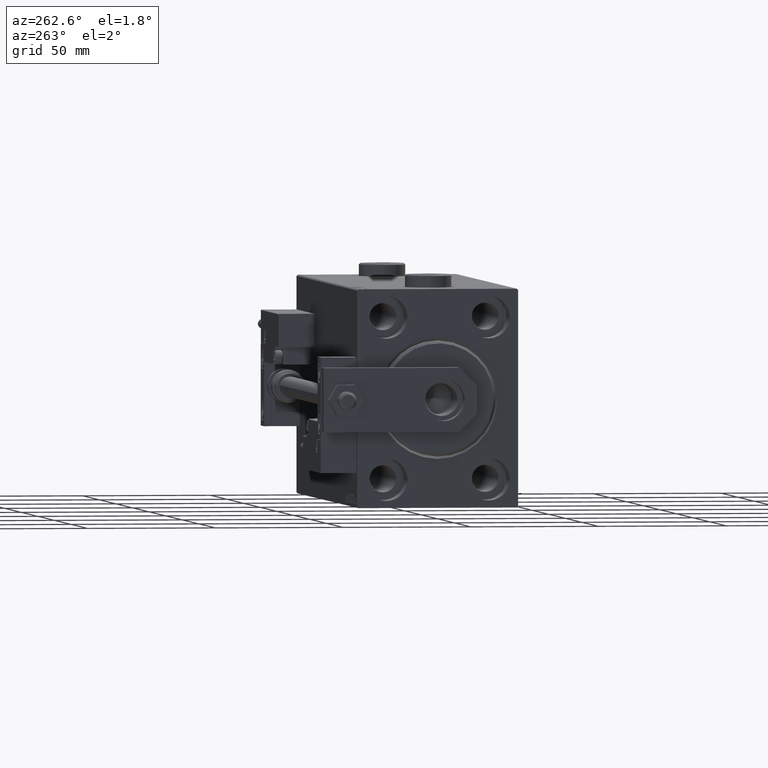
[diagram: clean part render]
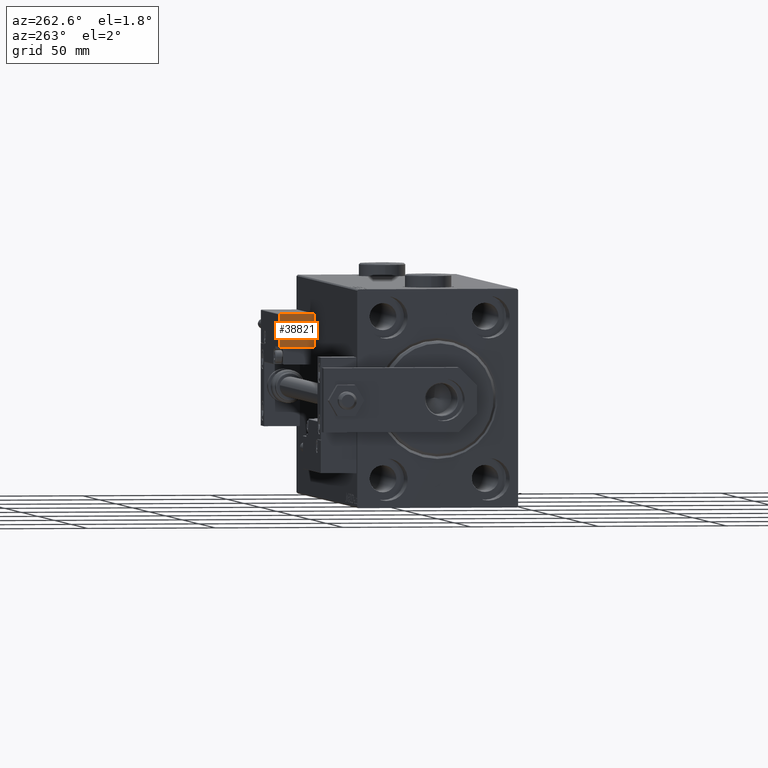
[diagram: same view with one face highlighted and labeled with its STEP entity id]
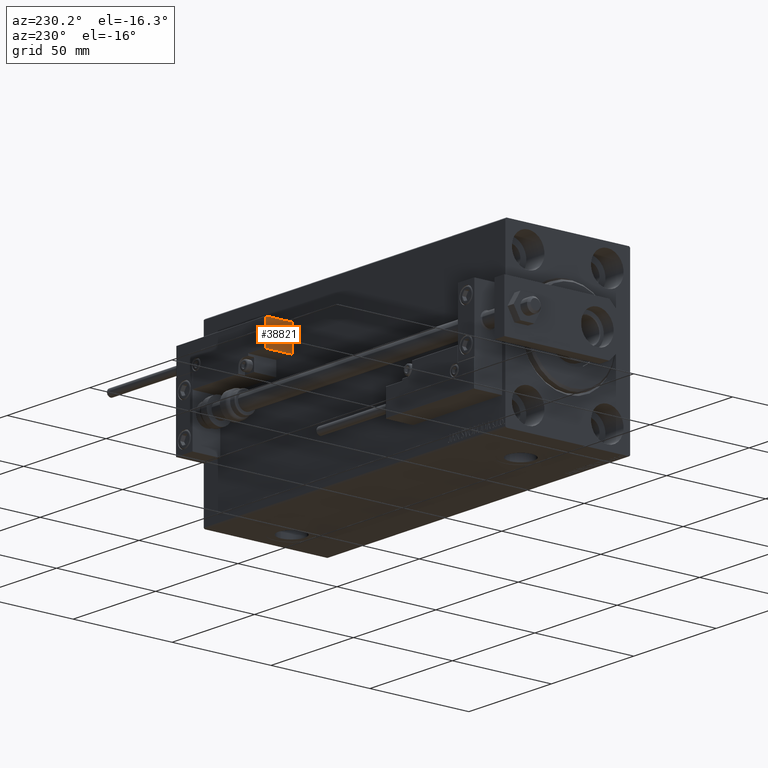
[diagram: same view with one face highlighted and labeled with its STEP entity id]
A machine part, auxiliary view. The second image highlights one B-rep face of the part: STEP entity #38821.
A second angle (auxiliary view) of the same face is appended — the face is thin or edge-on in the first view.
In plain terms, the highlighted planar face has unit normal (1, -0, -0).
Its self-contained STEP definition (entity closure, byte-faithful):
#1264 = ORIENTED_EDGE ( 'NONE', *, *, #27622, .T. ) ;
#1736 = DIRECTION ( 'NONE',  ( -0.000000000000000000, -0.000000000000000000, -1.000000000000000000 ) ) ;
#1772 = AXIS2_PLACEMENT_3D ( 'NONE', #19970, #12163, #8239 ) ;
#2862 = DIRECTION ( 'NONE',  ( -0.000000000000000000, -1.000000000000000000, -0.000000000000000000 ) ) ;
#4919 = VERTEX_POINT ( 'NONE', #12895 ) ;
#7744 = CARTESIAN_POINT ( 'NONE',  ( 27.00000000000006395, 7.000000000000007994, 0.000000000000000000 ) ) ;
#8239 = DIRECTION ( 'NONE',  ( 0.000000000000000000, 0.000000000000000000, 1.000000000000000000 ) ) ;
#9376 = ORIENTED_EDGE ( 'NONE', *, *, #47122, .T. ) ;
#10170 = CARTESIAN_POINT ( 'NONE',  ( 27.00000000000006395, 7.000000000000007994, 13.70000000000000107 ) ) ;
#12163 = DIRECTION ( 'NONE',  ( -1.000000000000000000, 0.000000000000000000, 0.000000000000000000 ) ) ;
#12895 = CARTESIAN_POINT ( 'NONE',  ( 27.00000000000006395, 20.00000000000001776, 13.70000000000000107 ) ) ;
#19821 = LINE ( 'NONE', #27909, #30381 ) ;
#19970 = CARTESIAN_POINT ( 'NONE',  ( 27.00000000000006395, 7.000000000000007994, 14.00000000000000000 ) ) ;
#20597 = DIRECTION ( 'NONE',  ( -0.000000000000000000, -0.000000000000000000, -1.000000000000000000 ) ) ;
#22855 = CARTESIAN_POINT ( 'NONE',  ( 27.00000000000006395, 7.000000000000007994, 0.000000000000000000 ) ) ;
#23887 = FACE_OUTER_BOUND ( 'NONE', #24104, .T. ) ;
#24104 = EDGE_LOOP ( 'NONE', ( #25170, #30032, #9376, #1264 ) ) ;
#25055 = CARTESIAN_POINT ( 'NONE',  ( 27.00000000000006395, 7.000000000000007994, 13.70000000000000107 ) ) ;
#25170 = ORIENTED_EDGE ( 'NONE', *, *, #50817, .F. ) ;
#27622 = EDGE_CURVE ( 'NONE', #37013, #51510, #43435, .T. ) ;
#27909 = CARTESIAN_POINT ( 'NONE',  ( 27.00000000000006395, 7.000000000000007994, 14.00000000000000000 ) ) ;
#28005 = VECTOR ( 'NONE', #1736, 1000.000000000000000 ) ;
#29981 = LINE ( 'NONE', #10170, #49242 ) ;
#30032 = ORIENTED_EDGE ( 'NONE', *, *, #39913, .T. ) ;
#30381 = VECTOR ( 'NONE', #20597, 1000.000000000000000 ) ;
#30657 = LINE ( 'NONE', #46533, #28005 ) ;
#32520 = CARTESIAN_POINT ( 'NONE',  ( 27.00000000000006395, 20.00000000000001776, 0.000000000000000000 ) ) ;
#37013 = VERTEX_POINT ( 'NONE', #22855 ) ;
#38228 = DIRECTION ( 'NONE',  ( 0.000000000000000000, 1.000000000000000000, 0.000000000000000000 ) ) ;
#38821 = ADVANCED_FACE ( 'NONE', ( #23887 ), #39770, .F. ) ;
#39770 = PLANE ( 'NONE',  #1772 ) ;
#39913 = EDGE_CURVE ( 'NONE', #4919, #45728, #29981, .T. ) ;
#43435 = LINE ( 'NONE', #7744, #48394 ) ;
#45728 = VERTEX_POINT ( 'NONE', #25055 ) ;
#46533 = CARTESIAN_POINT ( 'NONE',  ( 27.00000000000006395, 20.00000000000001776, 14.00000000000000000 ) ) ;
#47122 = EDGE_CURVE ( 'NONE', #45728, #37013, #19821, .T. ) ;
#48394 = VECTOR ( 'NONE', #38228, 1000.000000000000000 ) ;
#49242 = VECTOR ( 'NONE', #2862, 1000.000000000000000 ) ;
#50817 = EDGE_CURVE ( 'NONE', #4919, #51510, #30657, .T. ) ;
#51510 = VERTEX_POINT ( 'NONE', #32520 ) ;